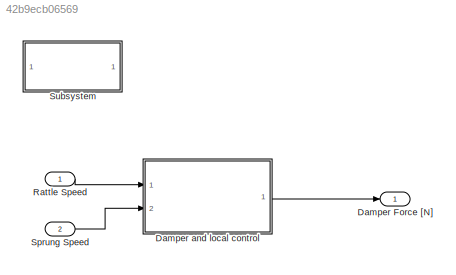
MODEL slx_42b9ecb06569
KIND model
CONFIG AbsTol = auto
CONFIG EnableMultiTasking = off
CONFIG FixedStep = 0.001
CONFIG MaxStep = auto
CONFIG MinStep = auto
CONFIG RelTol = 1e-3
CONFIG SampleTimeConstraint = Unconstrained
CONFIG SolverName = ode1
CONFIG StartTime = 0.0
CONFIG StopTime = inf
BLOCK [Outport] Damper Force [N]
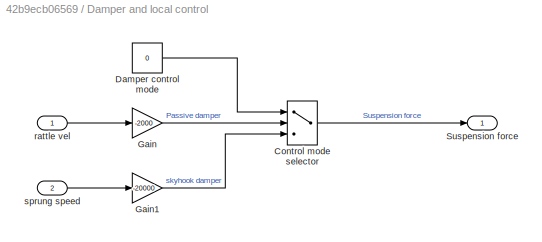
BLOCK [SubSystem] Damper and local control
  Ports = [2, 1]
  RequestExecContextInheritance = off
BLOCK [MultiPortSwitch] Damper and local control/Control mode selector
  DataPortOrder = Zero-based contiguous
  InputSameDT = off
  Inputs = 2
  Ports = [3, 1]
  SaturateOnIntegerOverflow = off
  zeroidx = on
BLOCK [Constant] Damper and local control/Damper control mode
  Value = 0
BLOCK [Gain] Damper and local control/Gain
  Gain = -2000
BLOCK [Gain] Damper and local control/Gain1
  Gain = -20000
BLOCK [Outport] Damper and local control/Suspension force
BLOCK [Inport] Damper and local control/rattle vel
BLOCK [Inport] Damper and local control/sprung speed
  Port = 2
BLOCK [Inport] Rattle Speed
BLOCK [Inport] Sprung Speed
  Port = 2
BLOCK [SubSystem] Subsystem
  OpenFcn = k_tire = 225400;  %200000 in literature\nc_tire = 100;        % Estimated. In literatures 6N\nk_susp =  25000;  % 15000 in literature\nc_susp = 400;       %1429 Ns/m in literature\ng = 0 % 9.8; Removed to avoid initialization problems\nm_unsprung = 66;\nm_sprung = 449.25;\nX_sprung0  = .5;\nX_unsprung0  = .1;\ndelayTimeCarToDamper =  0.002;\n%InitQuarterCarCompensatorScript;\n%Amplitude =.01;
  Ports = []
  RequestExecContextInheritance = off
LINE Damper and local control/Control mode selector:1 -> Damper and local control/Suspension force:1
LINE Damper and local control/Damper control mode:1 -> Damper and local control/Control mode selector:1
LINE Damper and local control/Gain1:1 -> Damper and local control/Control mode selector:3
LINE Damper and local control/Gain:1 -> Damper and local control/Control mode selector:2
LINE Damper and local control/rattle vel:1 -> Damper and local control/Gain:1
LINE Damper and local control/sprung speed:1 -> Damper and local control/Gain1:1
LINE Damper and local control:1 -> Damper Force [N]:1
LINE Rattle Speed:1 -> Damper and local control:1
LINE Sprung Speed:1 -> Damper and local control:2
